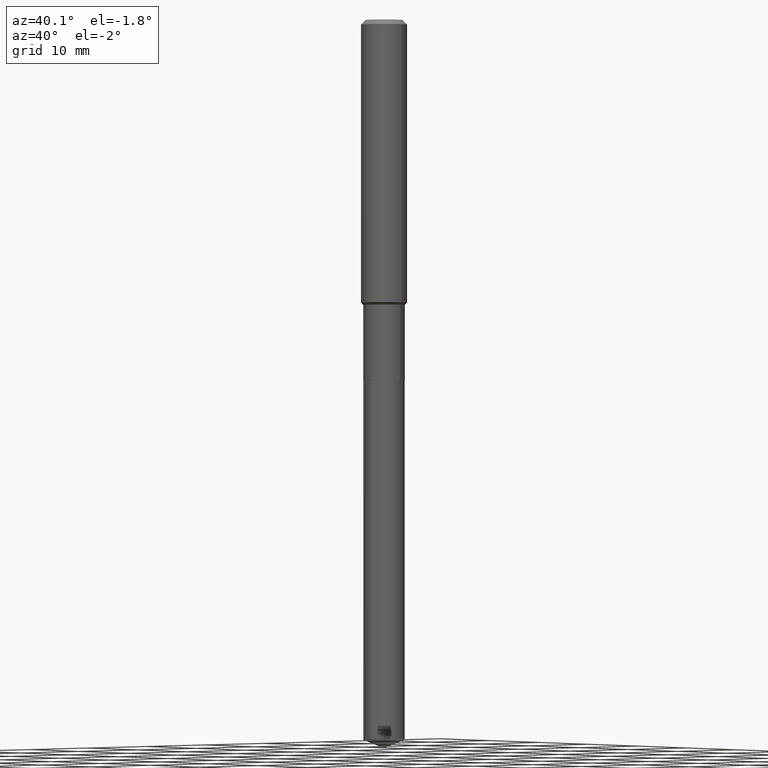
[diagram: clean part render]
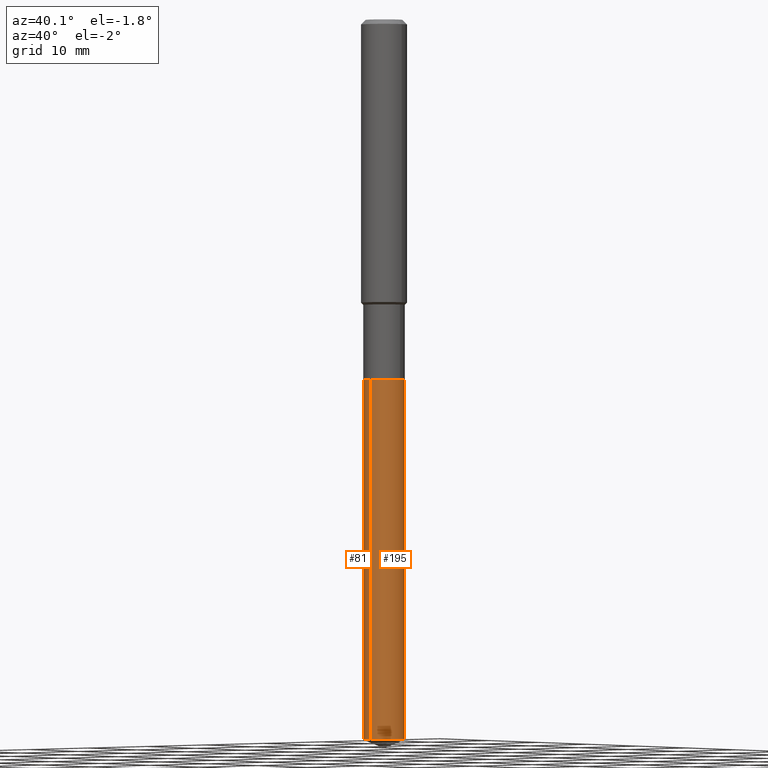
[diagram: same view with one multi-face feature highlighted, each face labeled with its STEP entity id]
A machine part, auxiliary view. The highlighted faces form ONE feature: a constant-radius fillet chain: 2 tangent blend faces with common blend radius 2.7 mm. The faces share edges in the B-rep.
Their STEP definitions:
[1] entity #195 (Cylinder):
#8 = DIRECTION ( 'NONE',  ( -6.982962677686265922E-15, -1.000000000000000000, 5.139883337091746339E-15 ) ) ;
#12 = EDGE_CURVE ( 'NONE', #308, #267, #173, .T. ) ;
#14 = FACE_OUTER_BOUND ( 'NONE', #240, .T. ) ;
#47 = DIRECTION ( 'NONE',  ( -6.982962677686265922E-15, -1.000000000000000000, 2.569941668545873170E-15 ) ) ;
#61 = VECTOR ( 'NONE', #109, 39.37007874015748143 ) ;
#69 = CARTESIAN_POINT ( 'NONE',  ( 7.553069281130767633E-16, 0.1062999999999870854, -3.698327316442133306 ) ) ;
#78 = AXIS2_PLACEMENT_3D ( 'NONE', #316, #417, #444 ) ;
#82 = ORIENTED_EDGE ( 'NONE', *, *, #433, .F. ) ;
#85 = ORIENTED_EDGE ( 'NONE', *, *, #447, .T. ) ;
#106 = AXIS2_PLACEMENT_3D ( 'NONE', #163, #461, #47 ) ;
#107 = CARTESIAN_POINT ( 'NONE',  ( 7.553069281130771577E-16, 0.1062999999999935524, -1.850400000000000489 ) ) ;
#109 = DIRECTION ( 'NONE',  ( -2.445480539169630025E-29, 3.491464536541551464E-15, 1.000000000000000000 ) ) ;
#147 = VECTOR ( 'NONE', #212, 39.37007874015748143 ) ;
#163 = CARTESIAN_POINT ( 'NONE',  ( 4.525095478964977394E-29, -6.460637069395357576E-15, -1.850400000000000267 ) ) ;
#172 = CYLINDRICAL_SURFACE ( 'NONE', #78, 0.1063000000000000056 ) ;
#173 = LINE ( 'NONE', #385, #147 ) ;
#187 = CIRCLE ( 'NONE', #106, 0.1063000000000000056 ) ;
#195 = ADVANCED_FACE ( 'NONE', ( #14 ), #172, .T. ) ;
#201 = DIRECTION ( 'NONE',  ( -2.445480539169629745E-29, 3.491464536541551464E-15, 1.000000000000000000 ) ) ;
#212 = DIRECTION ( 'NONE',  ( -2.445480539169630025E-29, 3.491464536541551464E-15, 1.000000000000000000 ) ) ;
#215 = LINE ( 'NONE', #244, #61 ) ;
#240 = EDGE_LOOP ( 'NONE', ( #85, #450, #82, #379 ) ) ;
#244 = CARTESIAN_POINT ( 'NONE',  ( -7.422889326380048778E-16, -0.1063000000000064588, -1.850400000000000045 ) ) ;
#267 = VERTEX_POINT ( 'NONE', #107 ) ;
#284 = EDGE_CURVE ( 'NONE', #314, #457, #215, .T. ) ;
#308 = VERTEX_POINT ( 'NONE', #69 ) ;
#314 = VERTEX_POINT ( 'NONE', #482 ) ;
#316 = CARTESIAN_POINT ( 'NONE',  ( 4.525095478964977394E-29, -6.460637069395357576E-15, -1.850400000000000267 ) ) ;
#370 = AXIS2_PLACEMENT_3D ( 'NONE', #380, #201, #8 ) ;
#376 = CIRCLE ( 'NONE', #370, 0.1063000000000000056 ) ;
#379 = ORIENTED_EDGE ( 'NONE', *, *, #284, .F. ) ;
#380 = CARTESIAN_POINT ( 'NONE',  ( 9.044165769124170922E-29, -1.291260976085945986E-14, -3.698327316442132862 ) ) ;
#385 = CARTESIAN_POINT ( 'NONE',  ( 7.553069281130316996E-16, 0.1062999999999935524, -1.850400000000000489 ) ) ;
#417 = DIRECTION ( 'NONE',  ( -2.445480539169629745E-29, 3.491464536541551464E-15, 1.000000000000000000 ) ) ;
#422 = CARTESIAN_POINT ( 'NONE',  ( -7.422889326380048778E-16, -0.1063000000000064588, -1.850400000000000045 ) ) ;
#433 = EDGE_CURVE ( 'NONE', #457, #267, #187, .T. ) ;
#444 = DIRECTION ( 'NONE',  ( -6.982962677686265922E-15, -1.000000000000000000, 2.569941668545873170E-15 ) ) ;
#447 = EDGE_CURVE ( 'NONE', #314, #308, #376, .T. ) ;
#450 = ORIENTED_EDGE ( 'NONE', *, *, #12, .T. ) ;
#457 = VERTEX_POINT ( 'NONE', #422 ) ;
#461 = DIRECTION ( 'NONE',  ( -2.445480539169629745E-29, 3.491464536541551464E-15, 1.000000000000000000 ) ) ;
#482 = CARTESIAN_POINT ( 'NONE',  ( -7.422889326379596169E-16, -0.1063000000000129119, -3.698327316442132418 ) ) ;
[2] entity #81 (Cylinder):
#12 = EDGE_CURVE ( 'NONE', #308, #267, #173, .T. ) ;
#32 = CARTESIAN_POINT ( 'NONE',  ( 4.525095478964977394E-29, -6.460637069395357576E-15, -1.850400000000000267 ) ) ;
#33 = DIRECTION ( 'NONE',  ( -2.445480539169629745E-29, 3.491464536541551464E-15, 1.000000000000000000 ) ) ;
#52 = AXIS2_PLACEMENT_3D ( 'NONE', #329, #33, #436 ) ;
#57 = DIRECTION ( 'NONE',  ( -6.982962677686265922E-15, -1.000000000000000000, 5.139883337091746339E-15 ) ) ;
#61 = VECTOR ( 'NONE', #109, 39.37007874015748143 ) ;
#69 = CARTESIAN_POINT ( 'NONE',  ( 7.553069281130767633E-16, 0.1062999999999870854, -3.698327316442133306 ) ) ;
#81 = ADVANCED_FACE ( 'NONE', ( #293 ), #102, .T. ) ;
#102 = CYLINDRICAL_SURFACE ( 'NONE', #125, 0.1063000000000000056 ) ;
#107 = CARTESIAN_POINT ( 'NONE',  ( 7.553069281130771577E-16, 0.1062999999999935524, -1.850400000000000489 ) ) ;
#109 = DIRECTION ( 'NONE',  ( -2.445480539169630025E-29, 3.491464536541551464E-15, 1.000000000000000000 ) ) ;
#118 = ORIENTED_EDGE ( 'NONE', *, *, #12, .F. ) ;
#125 = AXIS2_PLACEMENT_3D ( 'NONE', #32, #335, #146 ) ;
#127 = EDGE_CURVE ( 'NONE', #308, #314, #192, .T. ) ;
#128 = ORIENTED_EDGE ( 'NONE', *, *, #199, .F. ) ;
#146 = DIRECTION ( 'NONE',  ( -6.982962677686265922E-15, -1.000000000000000000, 2.569941668545873170E-15 ) ) ;
#147 = VECTOR ( 'NONE', #212, 39.37007874015748143 ) ;
#173 = LINE ( 'NONE', #385, #147 ) ;
#192 = CIRCLE ( 'NONE', #374, 0.1063000000000000056 ) ;
#199 = EDGE_CURVE ( 'NONE', #267, #457, #410, .T. ) ;
#212 = DIRECTION ( 'NONE',  ( -2.445480539169630025E-29, 3.491464536541551464E-15, 1.000000000000000000 ) ) ;
#215 = LINE ( 'NONE', #244, #61 ) ;
#228 = EDGE_LOOP ( 'NONE', ( #118, #229, #472, #128 ) ) ;
#229 = ORIENTED_EDGE ( 'NONE', *, *, #127, .T. ) ;
#244 = CARTESIAN_POINT ( 'NONE',  ( -7.422889326380048778E-16, -0.1063000000000064588, -1.850400000000000045 ) ) ;
#267 = VERTEX_POINT ( 'NONE', #107 ) ;
#278 = DIRECTION ( 'NONE',  ( -2.445480539169629745E-29, 3.491464536541551464E-15, 1.000000000000000000 ) ) ;
#284 = EDGE_CURVE ( 'NONE', #314, #457, #215, .T. ) ;
#293 = FACE_OUTER_BOUND ( 'NONE', #228, .T. ) ;
#308 = VERTEX_POINT ( 'NONE', #69 ) ;
#314 = VERTEX_POINT ( 'NONE', #482 ) ;
#329 = CARTESIAN_POINT ( 'NONE',  ( 4.525095478964977394E-29, -6.460637069395357576E-15, -1.850400000000000267 ) ) ;
#335 = DIRECTION ( 'NONE',  ( -2.445480539169629745E-29, 3.491464536541551464E-15, 1.000000000000000000 ) ) ;
#374 = AXIS2_PLACEMENT_3D ( 'NONE', #390, #278, #57 ) ;
#385 = CARTESIAN_POINT ( 'NONE',  ( 7.553069281130316996E-16, 0.1062999999999935524, -1.850400000000000489 ) ) ;
#390 = CARTESIAN_POINT ( 'NONE',  ( 9.044165769124170922E-29, -1.291260976085945986E-14, -3.698327316442132862 ) ) ;
#410 = CIRCLE ( 'NONE', #52, 0.1063000000000000056 ) ;
#422 = CARTESIAN_POINT ( 'NONE',  ( -7.422889326380048778E-16, -0.1063000000000064588, -1.850400000000000045 ) ) ;
#436 = DIRECTION ( 'NONE',  ( -6.982962677686265922E-15, -1.000000000000000000, 2.569941668545873170E-15 ) ) ;
#457 = VERTEX_POINT ( 'NONE', #422 ) ;
#472 = ORIENTED_EDGE ( 'NONE', *, *, #284, .T. ) ;
#482 = CARTESIAN_POINT ( 'NONE',  ( -7.422889326379596169E-16, -0.1063000000000129119, -3.698327316442132418 ) ) ;